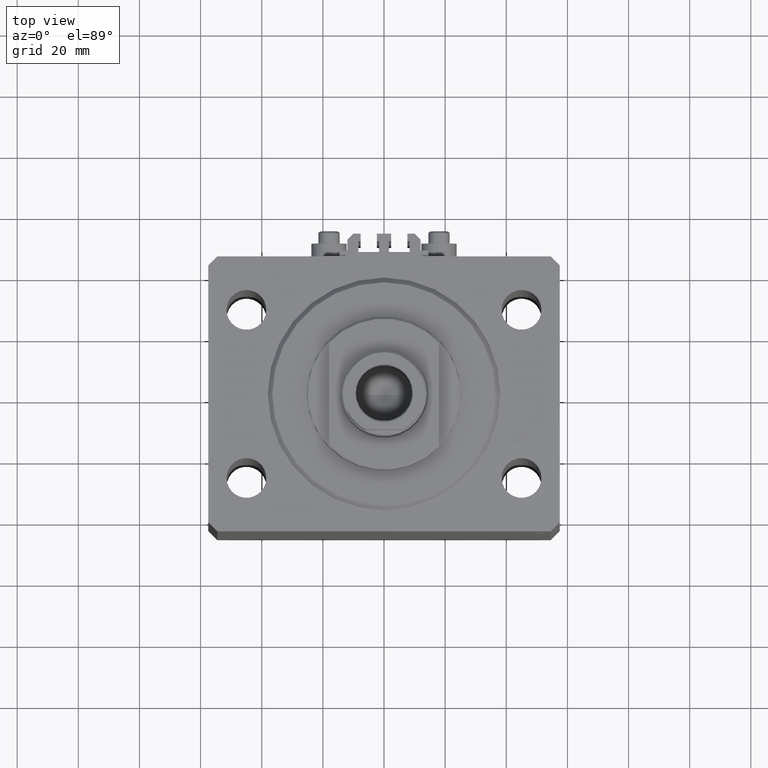
[diagram: clean part render]
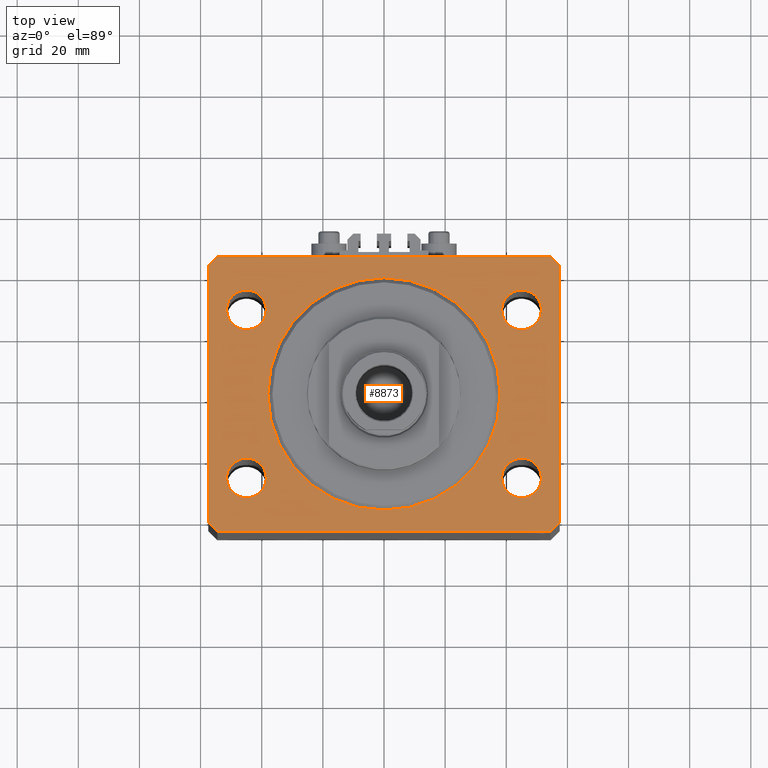
[diagram: same view with one face highlighted and labeled with its STEP entity id]
A machine part, top view. The second image highlights one B-rep face of the part: STEP entity #8873.
In plain terms, the highlighted planar face has unit normal (0, 0, 1).
Its self-contained STEP definition (entity closure, byte-faithful):
#137 = DIRECTION ( 'NONE',  ( -0.7071067811865369146, 0.7071067811865581199, 0.000000000000000000 ) ) ;
#237 = CARTESIAN_POINT ( 'NONE',  ( -45.00000000000000000, 27.49999999999999645, 0.000000000000000000 ) ) ;
#833 = DIRECTION ( 'NONE',  ( 1.000000000000000000, 0.000000000000000000, 0.000000000000000000 ) ) ;
#1281 = LINE ( 'NONE', #12066, #27477 ) ;
#1291 = FACE_BOUND ( 'NONE', #42786, .T. ) ;
#1348 = CIRCLE ( 'NONE', #13593, 38.00000000000000000 ) ;
#1949 = VERTEX_POINT ( 'NONE', #32850 ) ;
#2413 = CIRCLE ( 'NONE', #39847, 6.499999999999999112 ) ;
#3006 = EDGE_CURVE ( 'NONE', #43972, #30668, #35077, .T. ) ;
#3099 = CARTESIAN_POINT ( 'NONE',  ( 0.000000000000000000, 0.000000000000000000, 0.000000000000000000 ) ) ;
#3477 = VECTOR ( 'NONE', #34368, 1000.000000000000000 ) ;
#3521 = VERTEX_POINT ( 'NONE', #24506 ) ;
#3534 = CIRCLE ( 'NONE', #28809, 6.499999999999999112 ) ;
#3540 = VECTOR ( 'NONE', #14389, 1000.000000000000000 ) ;
#3675 = CARTESIAN_POINT ( 'NONE',  ( -54.49999999999999289, 45.00000000000000000, 0.000000000000000000 ) ) ;
#3731 = LINE ( 'NONE', #18337, #37199 ) ;
#3839 = DIRECTION ( 'NONE',  ( 0.7071067811865483499, 0.7071067811865466846, 0.000000000000000000 ) ) ;
#3942 = VERTEX_POINT ( 'NONE', #44285 ) ;
#4597 = EDGE_CURVE ( 'NONE', #30283, #43972, #46929, .T. ) ;
#4677 = ORIENTED_EDGE ( 'NONE', *, *, #46521, .F. ) ;
#4751 = EDGE_CURVE ( 'NONE', #27372, #33650, #9424, .T. ) ;
#6649 = CIRCLE ( 'NONE', #37217, 38.00000000000000000 ) ;
#6709 = CIRCLE ( 'NONE', #40331, 6.499999999999999112 ) ;
#6954 = DIRECTION ( 'NONE',  ( 1.000000000000000000, 0.000000000000000000, 0.000000000000000000 ) ) ;
#7024 = DIRECTION ( 'NONE',  ( 1.000000000000000000, 1.273191542001326317E-16, 0.000000000000000000 ) ) ;
#7257 = EDGE_CURVE ( 'NONE', #30375, #25168, #41102, .T. ) ;
#7306 = ORIENTED_EDGE ( 'NONE', *, *, #41852, .F. ) ;
#8717 = FACE_BOUND ( 'NONE', #43749, .T. ) ;
#8873 = ADVANCED_FACE ( 'NONE', ( #28286, #1291, #8717, #30747, #44855, #31860 ), #13673, .T. ) ;
#8983 = AXIS2_PLACEMENT_3D ( 'NONE', #44443, #39897, #36777 ) ;
#9295 = CARTESIAN_POINT ( 'NONE',  ( 57.50000000000000711, -41.99999999999998579, 0.000000000000000000 ) ) ;
#9424 = CIRCLE ( 'NONE', #43027, 6.499999999999999112 ) ;
#9870 = DIRECTION ( 'NONE',  ( 0.000000000000000000, 0.000000000000000000, 1.000000000000000000 ) ) ;
#9938 = CARTESIAN_POINT ( 'NONE',  ( -38.49999999999998579, -27.50000000000000355, 0.000000000000000000 ) ) ;
#10193 = ORIENTED_EDGE ( 'NONE', *, *, #38364, .T. ) ;
#10219 = DIRECTION ( 'NONE',  ( 0.000000000000000000, 0.000000000000000000, 1.000000000000000000 ) ) ;
#10726 = VECTOR ( 'NONE', #3839, 1000.000000000000000 ) ;
#11041 = DIRECTION ( 'NONE',  ( 0.000000000000000000, 0.000000000000000000, 1.000000000000000000 ) ) ;
#11516 = DIRECTION ( 'NONE',  ( 1.000000000000000000, 0.000000000000000000, 0.000000000000000000 ) ) ;
#11921 = CARTESIAN_POINT ( 'NONE',  ( 57.50000000000000711, -41.99999999999998579, 0.000000000000000000 ) ) ;
#12066 = CARTESIAN_POINT ( 'NONE',  ( -57.49999999999998579, 42.00000000000000711, 0.000000000000000000 ) ) ;
#12145 = CARTESIAN_POINT ( 'NONE',  ( 51.50000000000000000, 27.49999999999999289, 0.000000000000000000 ) ) ;
#12590 = CARTESIAN_POINT ( 'NONE',  ( -54.49999999999999289, 45.00000000000000000, 0.000000000000000000 ) ) ;
#13189 = EDGE_CURVE ( 'NONE', #44732, #3942, #3534, .T. ) ;
#13479 = VERTEX_POINT ( 'NONE', #29203 ) ;
#13593 = AXIS2_PLACEMENT_3D ( 'NONE', #3099, #43546, #32779 ) ;
#13673 = PLANE ( 'NONE',  #44228 ) ;
#13690 = CARTESIAN_POINT ( 'NONE',  ( 38.49999999999998579, -27.50000000000000355, 0.000000000000000000 ) ) ;
#13962 = EDGE_CURVE ( 'NONE', #25168, #30283, #3731, .T. ) ;
#14139 = DIRECTION ( 'NONE',  ( 1.000000000000000000, 0.000000000000000000, -0.000000000000000000 ) ) ;
#14389 = DIRECTION ( 'NONE',  ( -1.000000000000000000, -2.546383084002638829E-16, 0.000000000000000000 ) ) ;
#14704 = LINE ( 'NONE', #29314, #19631 ) ;
#15571 = AXIS2_PLACEMENT_3D ( 'NONE', #30408, #10219, #38279 ) ;
#15986 = DIRECTION ( 'NONE',  ( 6.443258625056715108E-15, 1.000000000000000000, 0.000000000000000000 ) ) ;
#16040 = CARTESIAN_POINT ( 'NONE',  ( 54.50000000000000711, -44.99999999999998579, 0.000000000000000000 ) ) ;
#16618 = CARTESIAN_POINT ( 'NONE',  ( 51.49999999999998579, -27.50000000000000355, 0.000000000000000000 ) ) ;
#16903 = VERTEX_POINT ( 'NONE', #13690 ) ;
#18337 = CARTESIAN_POINT ( 'NONE',  ( 57.50000000000055422, 41.99999999999997868, 0.000000000000000000 ) ) ;
#18380 = ORIENTED_EDGE ( 'NONE', *, *, #26723, .F. ) ;
#19240 = AXIS2_PLACEMENT_3D ( 'NONE', #32356, #11041, #21340 ) ;
#19394 = CIRCLE ( 'NONE', #15571, 6.499999999999999112 ) ;
#19405 = ORIENTED_EDGE ( 'NONE', *, *, #43210, .F. ) ;
#19631 = VECTOR ( 'NONE', #40757, 1000.000000000000114 ) ;
#19862 = DIRECTION ( 'NONE',  ( 1.000000000000000000, 0.000000000000000000, 0.000000000000000000 ) ) ;
#21073 = VERTEX_POINT ( 'NONE', #41077 ) ;
#21340 = DIRECTION ( 'NONE',  ( 1.000000000000000000, 0.000000000000000000, 0.000000000000000000 ) ) ;
#21622 = LINE ( 'NONE', #39806, #34182 ) ;
#21712 = ORIENTED_EDGE ( 'NONE', *, *, #31162, .F. ) ;
#22282 = CARTESIAN_POINT ( 'NONE',  ( 44.99999999999998579, -27.50000000000000355, 0.000000000000000000 ) ) ;
#22518 = ORIENTED_EDGE ( 'NONE', *, *, #4751, .F. ) ;
#22593 = DIRECTION ( 'NONE',  ( -2.478176394252581141E-16, -1.000000000000000000, 0.000000000000000000 ) ) ;
#23274 = CARTESIAN_POINT ( 'NONE',  ( -38.50000000000000000, 27.49999999999999645, 0.000000000000000000 ) ) ;
#23888 = ORIENTED_EDGE ( 'NONE', *, *, #29542, .T. ) ;
#23923 = DIRECTION ( 'NONE',  ( 0.000000000000000000, 0.000000000000000000, 1.000000000000000000 ) ) ;
#24506 = CARTESIAN_POINT ( 'NONE',  ( -54.50000000000000711, -45.00000000000000000, 0.000000000000000000 ) ) ;
#24679 = DIRECTION ( 'NONE',  ( 0.000000000000000000, 0.000000000000000000, 1.000000000000000000 ) ) ;
#25168 = VERTEX_POINT ( 'NONE', #39151 ) ;
#25622 = DIRECTION ( 'NONE',  ( 0.000000000000000000, 0.000000000000000000, 1.000000000000000000 ) ) ;
#25824 = VECTOR ( 'NONE', #15986, 1000.000000000000000 ) ;
#26495 = ORIENTED_EDGE ( 'NONE', *, *, #32629, .F. ) ;
#26520 = VERTEX_POINT ( 'NONE', #23274 ) ;
#26723 = EDGE_CURVE ( 'NONE', #21073, #13479, #6649, .T. ) ;
#27007 = ORIENTED_EDGE ( 'NONE', *, *, #7257, .T. ) ;
#27372 = VERTEX_POINT ( 'NONE', #12145 ) ;
#27477 = VECTOR ( 'NONE', #22593, 1000.000000000000000 ) ;
#27863 = EDGE_CURVE ( 'NONE', #3521, #43368, #21622, .T. ) ;
#28090 = VERTEX_POINT ( 'NONE', #43044 ) ;
#28286 = FACE_BOUND ( 'NONE', #29106, .T. ) ;
#28809 = AXIS2_PLACEMENT_3D ( 'NONE', #45332, #35024, #42431 ) ;
#29106 = EDGE_LOOP ( 'NONE', ( #18380, #37950 ) ) ;
#29203 = CARTESIAN_POINT ( 'NONE',  ( -38.00000000000000000, 4.653657836759941941E-15, 0.000000000000000000 ) ) ;
#29314 = CARTESIAN_POINT ( 'NONE',  ( -57.50000000000000711, -42.00000000000000711, 0.000000000000000000 ) ) ;
#29440 = CARTESIAN_POINT ( 'NONE',  ( 54.50000000000059686, 45.00000000000002842, 0.000000000000000000 ) ) ;
#29542 = EDGE_CURVE ( 'NONE', #1949, #3521, #14704, .T. ) ;
#30245 = CARTESIAN_POINT ( 'NONE',  ( 38.50000000000000000, 27.49999999999999289, 0.000000000000000000 ) ) ;
#30283 = VERTEX_POINT ( 'NONE', #29440 ) ;
#30375 = VERTEX_POINT ( 'NONE', #9295 ) ;
#30408 = CARTESIAN_POINT ( 'NONE',  ( -45.00000000000000000, 27.49999999999999645, 0.000000000000000000 ) ) ;
#30668 = VERTEX_POINT ( 'NONE', #35954 ) ;
#30747 = FACE_BOUND ( 'NONE', #45753, .T. ) ;
#31162 = EDGE_CURVE ( 'NONE', #3942, #44732, #37998, .T. ) ;
#31193 = ORIENTED_EDGE ( 'NONE', *, *, #4597, .T. ) ;
#31860 = FACE_OUTER_BOUND ( 'NONE', #38510, .T. ) ;
#32036 = CIRCLE ( 'NONE', #41957, 6.499999999999999112 ) ;
#32123 = DIRECTION ( 'NONE',  ( 1.000000000000000000, 0.000000000000000000, 0.000000000000000000 ) ) ;
#32356 = CARTESIAN_POINT ( 'NONE',  ( 44.99999999999998579, -27.50000000000000355, 0.000000000000000000 ) ) ;
#32454 = ORIENTED_EDGE ( 'NONE', *, *, #3006, .T. ) ;
#32629 = EDGE_CURVE ( 'NONE', #16903, #41127, #6709, .T. ) ;
#32779 = DIRECTION ( 'NONE',  ( 1.000000000000000000, 0.000000000000000000, 0.000000000000000000 ) ) ;
#32850 = CARTESIAN_POINT ( 'NONE',  ( -57.50000000000000711, -42.00000000000000711, 0.000000000000000000 ) ) ;
#32875 = EDGE_CURVE ( 'NONE', #13479, #21073, #1348, .T. ) ;
#33650 = VERTEX_POINT ( 'NONE', #30245 ) ;
#34182 = VECTOR ( 'NONE', #7024, 1000.000000000000000 ) ;
#34368 = DIRECTION ( 'NONE',  ( -0.7071067811865483499, -0.7071067811865466846, 0.000000000000000000 ) ) ;
#35024 = DIRECTION ( 'NONE',  ( 0.000000000000000000, 0.000000000000000000, 1.000000000000000000 ) ) ;
#35077 = LINE ( 'NONE', #12590, #3477 ) ;
#35662 = EDGE_CURVE ( 'NONE', #30668, #1949, #1281, .T. ) ;
#35954 = CARTESIAN_POINT ( 'NONE',  ( -57.49999999999998579, 42.00000000000000711, 0.000000000000000000 ) ) ;
#36142 = CARTESIAN_POINT ( 'NONE',  ( 54.50000000000059686, 45.00000000000002842, 0.000000000000000000 ) ) ;
#36611 = CARTESIAN_POINT ( 'NONE',  ( 0.000000000000000000, 0.000000000000000000, 0.000000000000000000 ) ) ;
#36612 = CARTESIAN_POINT ( 'NONE',  ( 54.50000000000000711, -44.99999999999998579, 0.000000000000000000 ) ) ;
#36777 = DIRECTION ( 'NONE',  ( 1.000000000000000000, 0.000000000000000000, 0.000000000000000000 ) ) ;
#36837 = EDGE_LOOP ( 'NONE', ( #41415, #4677 ) ) ;
#37199 = VECTOR ( 'NONE', #137, 1000.000000000000000 ) ;
#37217 = AXIS2_PLACEMENT_3D ( 'NONE', #42163, #9870, #32123 ) ;
#37907 = CARTESIAN_POINT ( 'NONE',  ( 45.00000000000000000, 27.49999999999999289, 0.000000000000000000 ) ) ;
#37950 = ORIENTED_EDGE ( 'NONE', *, *, #32875, .F. ) ;
#37998 = CIRCLE ( 'NONE', #8983, 6.499999999999999112 ) ;
#38279 = DIRECTION ( 'NONE',  ( 1.000000000000000000, 0.000000000000000000, 0.000000000000000000 ) ) ;
#38364 = EDGE_CURVE ( 'NONE', #43368, #30375, #44046, .T. ) ;
#38510 = EDGE_LOOP ( 'NONE', ( #31193, #32454, #41259, #23888, #41010, #10193, #27007, #47289 ) ) ;
#39151 = CARTESIAN_POINT ( 'NONE',  ( 57.50000000000055422, 41.99999999999997868, 0.000000000000000000 ) ) ;
#39695 = ORIENTED_EDGE ( 'NONE', *, *, #13189, .F. ) ;
#39806 = CARTESIAN_POINT ( 'NONE',  ( -54.50000000000000711, -45.00000000000000000, 0.000000000000000000 ) ) ;
#39847 = AXIS2_PLACEMENT_3D ( 'NONE', #37907, #45346, #833 ) ;
#39897 = DIRECTION ( 'NONE',  ( 0.000000000000000000, 0.000000000000000000, 1.000000000000000000 ) ) ;
#40331 = AXIS2_PLACEMENT_3D ( 'NONE', #22282, #40467, #11516 ) ;
#40467 = DIRECTION ( 'NONE',  ( 0.000000000000000000, 0.000000000000000000, 1.000000000000000000 ) ) ;
#40757 = DIRECTION ( 'NONE',  ( 0.7071067811865491270, -0.7071067811865459074, 0.000000000000000000 ) ) ;
#41010 = ORIENTED_EDGE ( 'NONE', *, *, #27863, .T. ) ;
#41077 = CARTESIAN_POINT ( 'NONE',  ( 38.00000000000000000, 0.000000000000000000, 0.000000000000000000 ) ) ;
#41102 = LINE ( 'NONE', #11921, #25824 ) ;
#41127 = VERTEX_POINT ( 'NONE', #16618 ) ;
#41259 = ORIENTED_EDGE ( 'NONE', *, *, #35662, .T. ) ;
#41407 = CIRCLE ( 'NONE', #19240, 6.499999999999999112 ) ;
#41415 = ORIENTED_EDGE ( 'NONE', *, *, #44591, .F. ) ;
#41852 = EDGE_CURVE ( 'NONE', #33650, #27372, #2413, .T. ) ;
#41957 = AXIS2_PLACEMENT_3D ( 'NONE', #237, #25622, #6954 ) ;
#42163 = CARTESIAN_POINT ( 'NONE',  ( 0.000000000000000000, 0.000000000000000000, 0.000000000000000000 ) ) ;
#42330 = CARTESIAN_POINT ( 'NONE',  ( 45.00000000000000000, 27.49999999999999289, 0.000000000000000000 ) ) ;
#42431 = DIRECTION ( 'NONE',  ( 1.000000000000000000, 0.000000000000000000, 0.000000000000000000 ) ) ;
#42786 = EDGE_LOOP ( 'NONE', ( #39695, #21712 ) ) ;
#43027 = AXIS2_PLACEMENT_3D ( 'NONE', #42330, #23923, #19862 ) ;
#43044 = CARTESIAN_POINT ( 'NONE',  ( -51.50000000000000000, 27.49999999999999645, 0.000000000000000000 ) ) ;
#43210 = EDGE_CURVE ( 'NONE', #41127, #16903, #41407, .T. ) ;
#43368 = VERTEX_POINT ( 'NONE', #16040 ) ;
#43546 = DIRECTION ( 'NONE',  ( 0.000000000000000000, 0.000000000000000000, 1.000000000000000000 ) ) ;
#43749 = EDGE_LOOP ( 'NONE', ( #19405, #26495 ) ) ;
#43972 = VERTEX_POINT ( 'NONE', #3675 ) ;
#44046 = LINE ( 'NONE', #36612, #10726 ) ;
#44228 = AXIS2_PLACEMENT_3D ( 'NONE', #36611, #24679, #14139 ) ;
#44285 = CARTESIAN_POINT ( 'NONE',  ( -51.49999999999998579, -27.50000000000000355, 0.000000000000000000 ) ) ;
#44443 = CARTESIAN_POINT ( 'NONE',  ( -44.99999999999998579, -27.50000000000000355, 0.000000000000000000 ) ) ;
#44591 = EDGE_CURVE ( 'NONE', #26520, #28090, #19394, .T. ) ;
#44732 = VERTEX_POINT ( 'NONE', #9938 ) ;
#44855 = FACE_BOUND ( 'NONE', #36837, .T. ) ;
#45332 = CARTESIAN_POINT ( 'NONE',  ( -44.99999999999998579, -27.50000000000000355, 0.000000000000000000 ) ) ;
#45346 = DIRECTION ( 'NONE',  ( 0.000000000000000000, 0.000000000000000000, 1.000000000000000000 ) ) ;
#45753 = EDGE_LOOP ( 'NONE', ( #22518, #7306 ) ) ;
#46521 = EDGE_CURVE ( 'NONE', #28090, #26520, #32036, .T. ) ;
#46929 = LINE ( 'NONE', #36142, #3540 ) ;
#47289 = ORIENTED_EDGE ( 'NONE', *, *, #13962, .T. ) ;